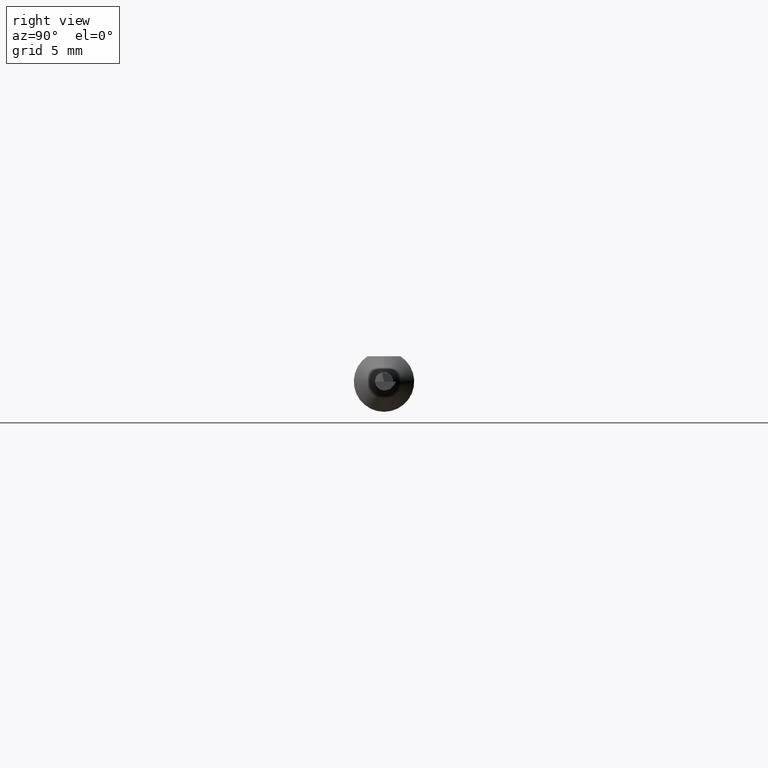
[diagram: clean part render]
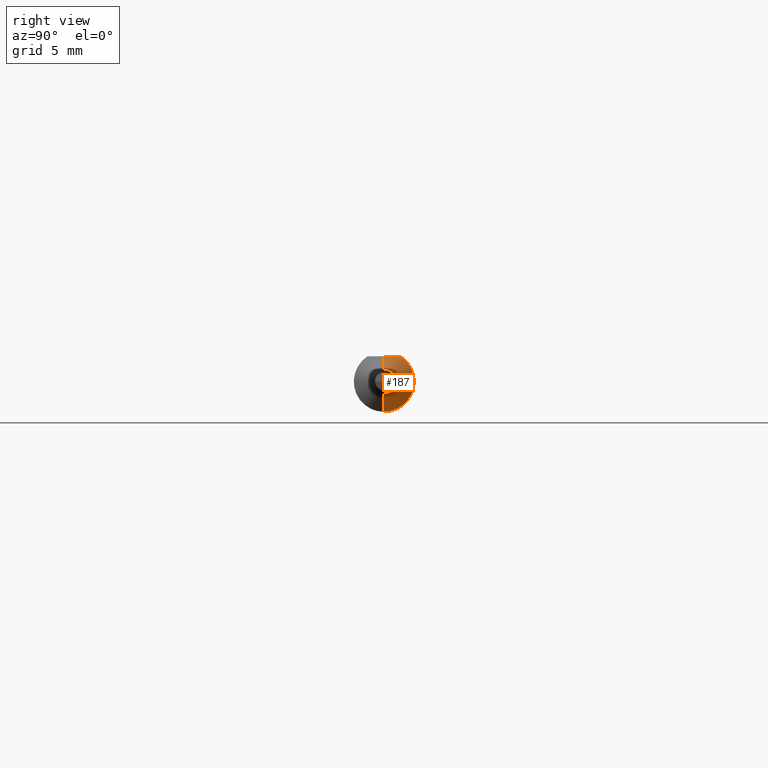
[diagram: same view with one face highlighted and labeled with its STEP entity id]
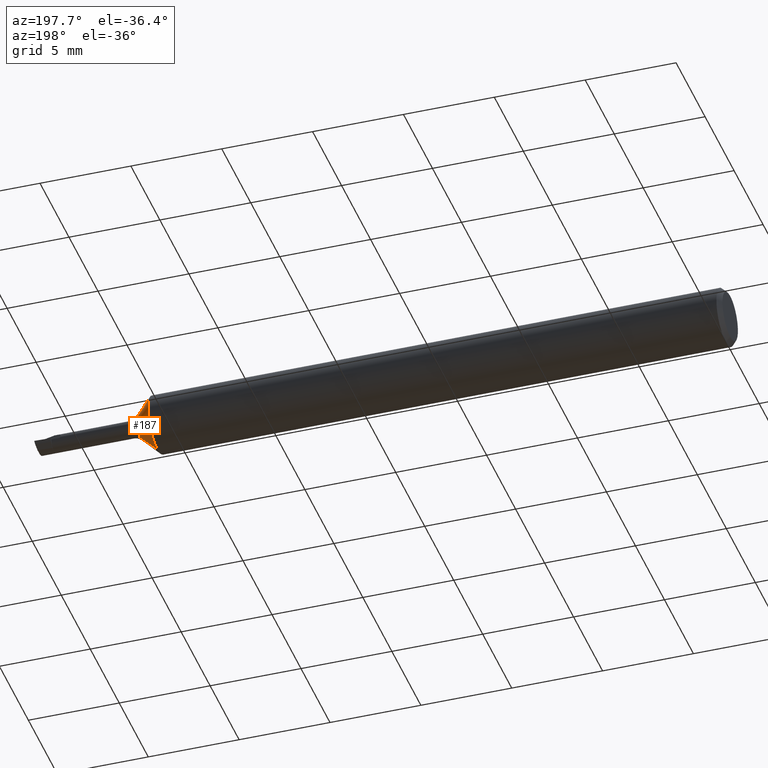
[diagram: same view with one face highlighted and labeled with its STEP entity id]
A machine part, right view. The second image highlights one B-rep face of the part: STEP entity #187.
A second angle (auxiliary view) of the same face is appended — the face is thin or edge-on in the first view.
In plain terms, the highlighted conical surface has half-angle 45 deg.
Its self-contained STEP definition (entity closure, byte-faithful):
#10 = DIRECTION ( 'NONE',  ( 0.000000000000000000, 0.000000000000000000, 1.000000000000000000 ) ) ;
#11 = LINE ( 'NONE', #475, #447 ) ;
#25 = CIRCLE ( 'NONE', #112, 0.02582233047033638193 ) ;
#44 = CARTESIAN_POINT ( 'NONE',  ( 1.243992034642578348, 0.02863519109676606472, 0.05235000000000002152 ) ) ;
#50 = VERTEX_POINT ( 'NONE', #74 ) ;
#64 = CARTESIAN_POINT ( 'NONE',  ( 1.241150000000000198, 0.000000000000000000, 0.000000000000000000 ) ) ;
#74 = CARTESIAN_POINT ( 'NONE',  ( 1.241150000000000198, 0.03386738844375220686, 0.05235000000000000070 ) ) ;
#80 = VERTEX_POINT ( 'NONE', #606 ) ;
#87 = FACE_OUTER_BOUND ( 'NONE', #497, .T. ) ;
#89 = EDGE_CURVE ( 'NONE', #483, #539, #25, .T. ) ;
#98 = LINE ( 'NONE', #249, #141 ) ;
#112 = AXIS2_PLACEMENT_3D ( 'NONE', #477, #571, #131 ) ;
#131 = DIRECTION ( 'NONE',  ( 0.000000000000000000, 0.000000000000000000, 1.000000000000000000 ) ) ;
#134 = EDGE_CURVE ( 'NONE', #539, #80, #11, .T. ) ;
#138 = DIRECTION ( 'NONE',  ( -1.000000000000000000, -0.000000000000000000, -0.000000000000000000 ) ) ;
#141 = VECTOR ( 'NONE', #396, 39.37007874015748143 ) ;
#180 = CARTESIAN_POINT ( 'NONE',  ( 1.277677669529663662, 3.162323435702261239E-18, -0.02582233047033637499 ) ) ;
#187 = ADVANCED_FACE ( 'NONE', ( #87 ), #523, .T. ) ;
#201 = CARTESIAN_POINT ( 'NONE',  ( 1.251150000000000206, 0.005920815533600993531, 0.05235000000000002152 ) ) ;
#246 = CARTESIAN_POINT ( 'NONE',  ( 1.277677669529663662, 0.000000000000000000, 0.02582233047033637499 ) ) ;
#249 = CARTESIAN_POINT ( 'NONE',  ( 1.277677669529663662, 0.000000000000000000, 0.02582233047033638193 ) ) ;
#255 = CARTESIAN_POINT ( 'NONE',  ( 1.246488788636946898, 0.02320328458619740422, 0.05235000000000002152 ) ) ;
#272 = AXIS2_PLACEMENT_3D ( 'NONE', #64, #521, #10 ) ;
#276 = B_SPLINE_CURVE_WITH_KNOTS ( 'NONE', 3,
 ( #552, #44, #255, #634, #201, #392 ),
 .UNSPECIFIED., .F., .F.,
 ( 4, 2, 4 ),
 ( 0.002018861167849298529, 0.002467762199066077071, 0.002916663230282855179 ),
 .UNSPECIFIED. ) ;
#284 = ORIENTED_EDGE ( 'NONE', *, *, #540, .F. ) ;
#287 = ORIENTED_EDGE ( 'NONE', *, *, #376, .F. ) ;
#311 = ORIENTED_EDGE ( 'NONE', *, *, #134, .T. ) ;
#353 = EDGE_CURVE ( 'NONE', #50, #436, #276, .T. ) ;
#376 = EDGE_CURVE ( 'NONE', #483, #436, #98, .T. ) ;
#392 = CARTESIAN_POINT ( 'NONE',  ( 1.251150000000000206, -1.477725056715825224E-21, 0.05235000000000001458 ) ) ;
#396 = DIRECTION ( 'NONE',  ( -0.7071067811865459074, 0.000000000000000000, 0.7071067811865491270 ) ) ;
#403 = ORIENTED_EDGE ( 'NONE', *, *, #353, .T. ) ;
#436 = VERTEX_POINT ( 'NONE', #603 ) ;
#447 = VECTOR ( 'NONE', #529, 39.37007874015748143 ) ;
#457 = ORIENTED_EDGE ( 'NONE', *, *, #89, .T. ) ;
#475 = CARTESIAN_POINT ( 'NONE',  ( 1.277677669529663662, 3.162323435702262010E-18, -0.02582233047033638193 ) ) ;
#477 = CARTESIAN_POINT ( 'NONE',  ( 1.277677669529663662, 0.000000000000000000, 0.000000000000000000 ) ) ;
#483 = VERTEX_POINT ( 'NONE', #246 ) ;
#497 = EDGE_LOOP ( 'NONE', ( #457, #311, #284, #403, #287 ) ) ;
#513 = CIRCLE ( 'NONE', #272, 0.06235000000000000264 ) ;
#521 = DIRECTION ( 'NONE',  ( -1.000000000000000000, -0.000000000000000000, -0.000000000000000000 ) ) ;
#523 = CONICAL_SURFACE ( 'NONE', #599, 0.02582233047033638193, 0.7853981633974506105 ) ;
#529 = DIRECTION ( 'NONE',  ( -0.7071067811865459074, 8.659560562354952580E-17, -0.7071067811865491270 ) ) ;
#539 = VERTEX_POINT ( 'NONE', #180 ) ;
#540 = EDGE_CURVE ( 'NONE', #50, #80, #513, .T. ) ;
#544 = DIRECTION ( 'NONE',  ( 0.000000000000000000, 0.000000000000000000, 1.000000000000000000 ) ) ;
#552 = CARTESIAN_POINT ( 'NONE',  ( 1.241150000000000198, 0.03386738844375220686, 0.05235000000000000070 ) ) ;
#571 = DIRECTION ( 'NONE',  ( -1.000000000000000000, -0.000000000000000000, -0.000000000000000000 ) ) ;
#599 = AXIS2_PLACEMENT_3D ( 'NONE', #621, #138, #544 ) ;
#603 = CARTESIAN_POINT ( 'NONE',  ( 1.251150000000000206, -1.477725056715825224E-21, 0.05235000000000001458 ) ) ;
#606 = CARTESIAN_POINT ( 'NONE',  ( 1.241150000000000198, 7.635672792683746671E-18, -0.06235000000000000264 ) ) ;
#621 = CARTESIAN_POINT ( 'NONE',  ( 1.277677669529663662, 0.000000000000000000, 0.000000000000000000 ) ) ;
#634 = CARTESIAN_POINT ( 'NONE',  ( 1.250078615661968762, 0.01191463382135336986, 0.05235000000000001458 ) ) ;